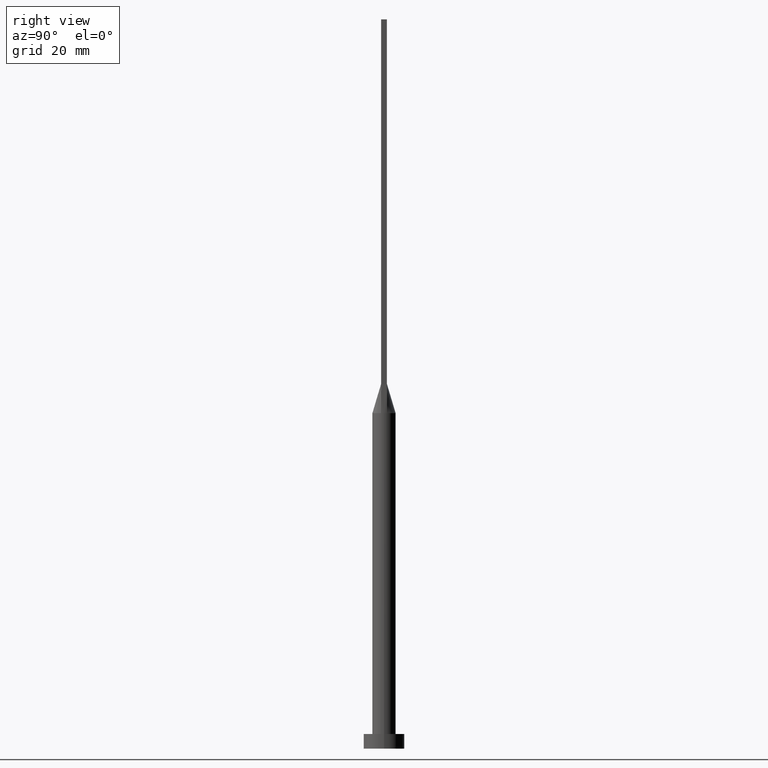
[diagram: clean part render]
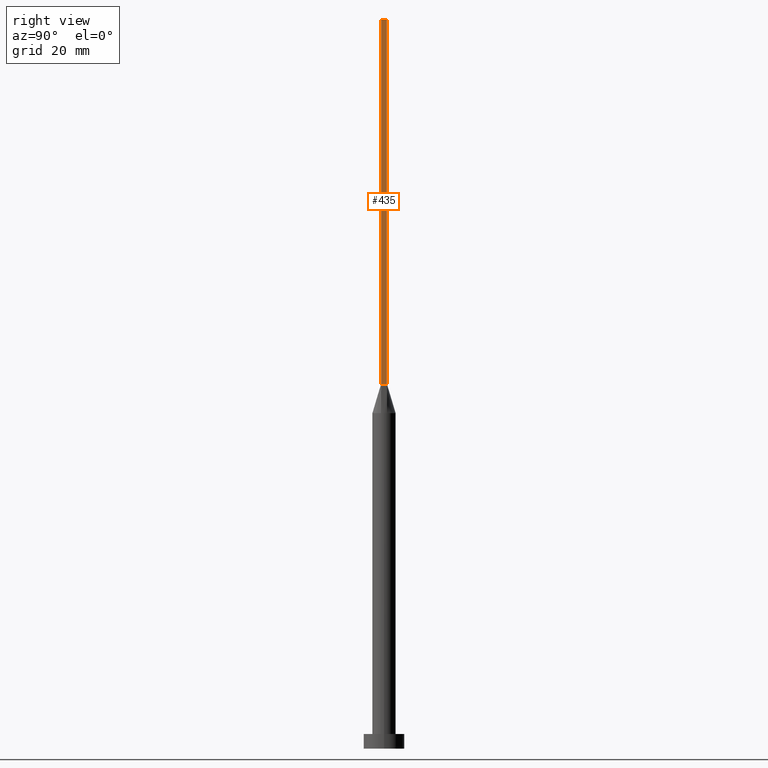
[diagram: same view with one face highlighted and labeled with its STEP entity id]
A machine part, right view. The second image highlights one B-rep face of the part: STEP entity #435.
In plain terms, the highlighted planar face has unit normal (-1, 0, 0).
Its self-contained STEP definition (entity closure, byte-faithful):
#12 = LINE ( 'NONE', #400, #417 ) ;
#28 = CARTESIAN_POINT ( 'NONE',  ( 3.750000000000000000, 1.000000000000000000, 125.0000000000000000 ) ) ;
#43 = ORIENTED_EDGE ( 'NONE', *, *, #185, .T. ) ;
#45 = DIRECTION ( 'NONE',  ( -0.000000000000000000, -0.000000000000000000, -1.000000000000000000 ) ) ;
#51 = VECTOR ( 'NONE', #45, 1000.000000000000000 ) ;
#55 = VERTEX_POINT ( 'NONE', #395 ) ;
#80 = FACE_OUTER_BOUND ( 'NONE', #99, .T. ) ;
#83 = AXIS2_PLACEMENT_3D ( 'NONE', #114, #155, #196 ) ;
#99 = EDGE_LOOP ( 'NONE', ( #43, #173, #499, #406 ) ) ;
#112 = EDGE_CURVE ( 'NONE', #55, #122, #12, .T. ) ;
#114 = CARTESIAN_POINT ( 'NONE',  ( 3.750000000000000000, -0.9999999999999997780, 250.0000000000000000 ) ) ;
#122 = VERTEX_POINT ( 'NONE', #415 ) ;
#130 = DIRECTION ( 'NONE',  ( -0.000000000000000000, 1.000000000000000000, -0.000000000000000000 ) ) ;
#155 = DIRECTION ( 'NONE',  ( -1.000000000000000000, 0.000000000000000000, 0.000000000000000000 ) ) ;
#156 = EDGE_CURVE ( 'NONE', #55, #438, #312, .T. ) ;
#173 = ORIENTED_EDGE ( 'NONE', *, *, #340, .F. ) ;
#182 = DIRECTION ( 'NONE',  ( 0.000000000000000000, 1.000000000000000000, 0.000000000000000000 ) ) ;
#185 = EDGE_CURVE ( 'NONE', #438, #562, #209, .T. ) ;
#188 = VECTOR ( 'NONE', #577, 1000.000000000000000 ) ;
#189 = CARTESIAN_POINT ( 'NONE',  ( 3.750000000000000000, 1.000000000000000000, 250.0000000000000000 ) ) ;
#196 = DIRECTION ( 'NONE',  ( 0.000000000000000000, 0.000000000000000000, 1.000000000000000000 ) ) ;
#209 = LINE ( 'NONE', #351, #515 ) ;
#312 = LINE ( 'NONE', #432, #188 ) ;
#340 = EDGE_CURVE ( 'NONE', #122, #562, #456, .T. ) ;
#351 = CARTESIAN_POINT ( 'NONE',  ( 3.750000000000000000, 1.000000000000000000, 125.0000000000000000 ) ) ;
#395 = CARTESIAN_POINT ( 'NONE',  ( 3.750000000000000000, -0.9999999999999997780, 250.0000000000000000 ) ) ;
#400 = CARTESIAN_POINT ( 'NONE',  ( 3.750000000000000000, -0.9999999999999997780, 250.0000000000000000 ) ) ;
#406 = ORIENTED_EDGE ( 'NONE', *, *, #156, .T. ) ;
#415 = CARTESIAN_POINT ( 'NONE',  ( 3.750000000000000000, 1.000000000000000000, 250.0000000000000000 ) ) ;
#417 = VECTOR ( 'NONE', #182, 1000.000000000000000 ) ;
#425 = PLANE ( 'NONE',  #83 ) ;
#432 = CARTESIAN_POINT ( 'NONE',  ( 3.750000000000000000, -0.9999999999999997780, 250.0000000000000000 ) ) ;
#435 = ADVANCED_FACE ( 'NONE', ( #80 ), #425, .F. ) ;
#438 = VERTEX_POINT ( 'NONE', #560 ) ;
#456 = LINE ( 'NONE', #189, #51 ) ;
#499 = ORIENTED_EDGE ( 'NONE', *, *, #112, .F. ) ;
#515 = VECTOR ( 'NONE', #130, 1000.000000000000000 ) ;
#560 = CARTESIAN_POINT ( 'NONE',  ( 3.750000000000000000, -0.9999999999999997780, 125.0000000000000000 ) ) ;
#562 = VERTEX_POINT ( 'NONE', #28 ) ;
#577 = DIRECTION ( 'NONE',  ( -0.000000000000000000, -0.000000000000000000, -1.000000000000000000 ) ) ;